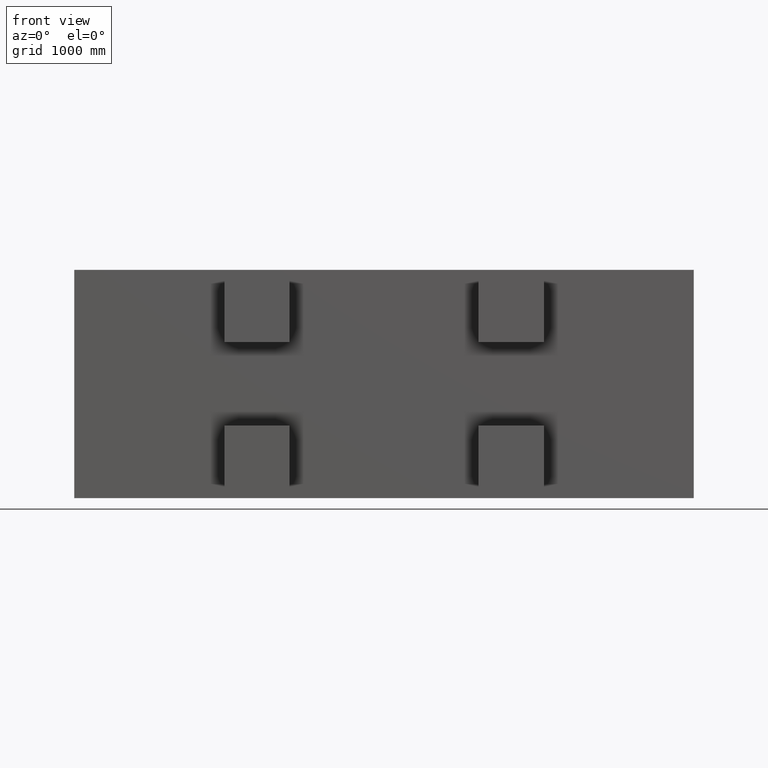
[diagram: clean part render]
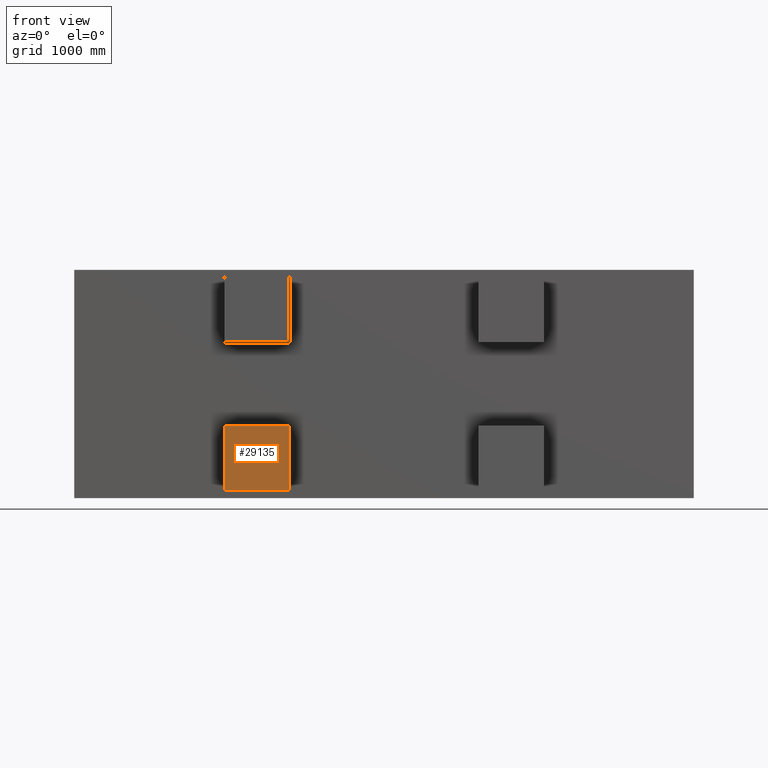
[diagram: same view with one face highlighted and labeled with its STEP entity id]
A machine part, front view. The second image highlights one B-rep face of the part: STEP entity #29135.
In plain terms, the highlighted planar face has unit normal (0, -1, 0).
Its self-contained STEP definition (entity closure, byte-faithful):
#3877 = VECTOR ( 'NONE', #5732, 1000.000000000000000 ) ;
#3879 = VECTOR ( 'NONE', #5743, 1000.000000000000000 ) ;
#3882 = VECTOR ( 'NONE', #5752, 1000.000000000000000 ) ;
#3887 = VECTOR ( 'NONE', #5758, 1000.000000000000000 ) ;
#5712 = LINE ( 'NONE', #5730, #3877 ) ;
#5728 = LINE ( 'NONE', #5742, #3879 ) ;
#5730 = CARTESIAN_POINT ( 'NONE',  ( -400.0000000000002300, -100.0000000000000000, -1419.999999999999800 ) ) ;
#5731 = LINE ( 'NONE', #5751, #3882 ) ;
#5732 = DIRECTION ( 'NONE',  ( 0.0000000000000000000, 0.0000000000000000000, -1.000000000000000000 ) ) ;
#5742 = CARTESIAN_POINT ( 'NONE',  ( -400.0000000000002300, -100.0000000000000000, -2219.999999999999500 ) ) ;
#5743 = DIRECTION ( 'NONE',  ( 1.000000000000000000, 0.0000000000000000000, 0.0000000000000000000 ) ) ;
#5751 = CARTESIAN_POINT ( 'NONE',  ( 399.9999999999997700, -100.0000000000000000, -1419.999999999999800 ) ) ;
#5752 = DIRECTION ( 'NONE',  ( -0.0000000000000000000, -0.0000000000000000000, 1.000000000000000000 ) ) ;
#5756 = LINE ( 'NONE', #5757, #3887 ) ;
#5757 = CARTESIAN_POINT ( 'NONE',  ( -400.0000000000002300, -100.0000000000000000, -1419.999999999999800 ) ) ;
#5758 = DIRECTION ( 'NONE',  ( -1.000000000000000000, -0.0000000000000000000, -0.0000000000000000000 ) ) ;
#6403 = CARTESIAN_POINT ( 'NONE',  ( -400.0000000000002300, -100.0000000000000000, -2219.999999999999500 ) ) ;
#6408 = CARTESIAN_POINT ( 'NONE',  ( -400.0000000000002300, -100.0000000000000000, -1419.999999999999800 ) ) ;
#6409 = CARTESIAN_POINT ( 'NONE',  ( 399.9999999999997700, -100.0000000000000000, -2219.999999999999500 ) ) ;
#6413 = CARTESIAN_POINT ( 'NONE',  ( 399.9999999999997700, -100.0000000000000000, -1419.999999999999800 ) ) ;
#7814 = PLANE ( 'NONE',  #8874 ) ;
#7829 = FACE_OUTER_BOUND ( 'NONE', #21408, .T. ) ;
#7839 = CARTESIAN_POINT ( 'NONE',  ( -400.0000000000002300, -100.0000000000000000, -2219.999999999999500 ) ) ;
#7840 = DIRECTION ( 'NONE',  ( 0.0000000000000000000, -1.000000000000000000, 0.0000000000000000000 ) ) ;
#7841 = DIRECTION ( 'NONE',  ( 0.0000000000000000000, -0.0000000000000000000, -1.000000000000000000 ) ) ;
#8874 = AXIS2_PLACEMENT_3D ( 'NONE', #7839, #7840, #7841 ) ;
#21408 = EDGE_LOOP ( 'NONE', ( #28092, #28093, #28094, #28095 ) ) ;
#26067 = EDGE_CURVE ( 'NONE', #27802, #27797, #5712, .T. ) ;
#26071 = EDGE_CURVE ( 'NONE', #27797, #27803, #5728, .T. ) ;
#26074 = EDGE_CURVE ( 'NONE', #27803, #27807, #5731, .T. ) ;
#26076 = EDGE_CURVE ( 'NONE', #27807, #27802, #5756, .T. ) ;
#27797 = VERTEX_POINT ( 'NONE', #6403 ) ;
#27802 = VERTEX_POINT ( 'NONE', #6408 ) ;
#27803 = VERTEX_POINT ( 'NONE', #6409 ) ;
#27807 = VERTEX_POINT ( 'NONE', #6413 ) ;
#28092 = ORIENTED_EDGE ( 'NONE', *, *, #26067, .T. ) ;
#28093 = ORIENTED_EDGE ( 'NONE', *, *, #26071, .T. ) ;
#28094 = ORIENTED_EDGE ( 'NONE', *, *, #26074, .T. ) ;
#28095 = ORIENTED_EDGE ( 'NONE', *, *, #26076, .T. ) ;
#29135 = ADVANCED_FACE ( 'NONE', ( #7829 ), #7814, .T. ) ;